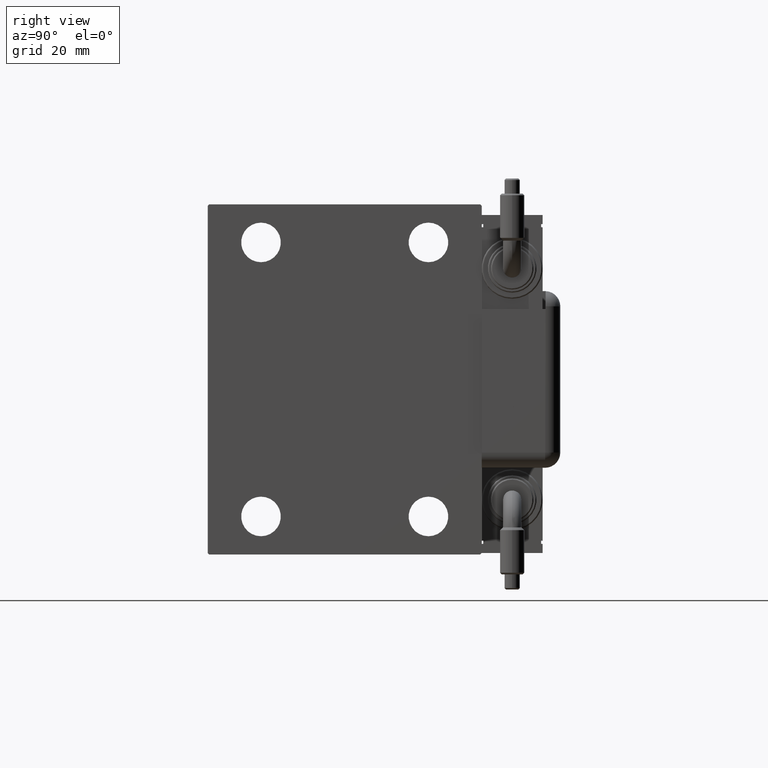
[diagram: clean part render]
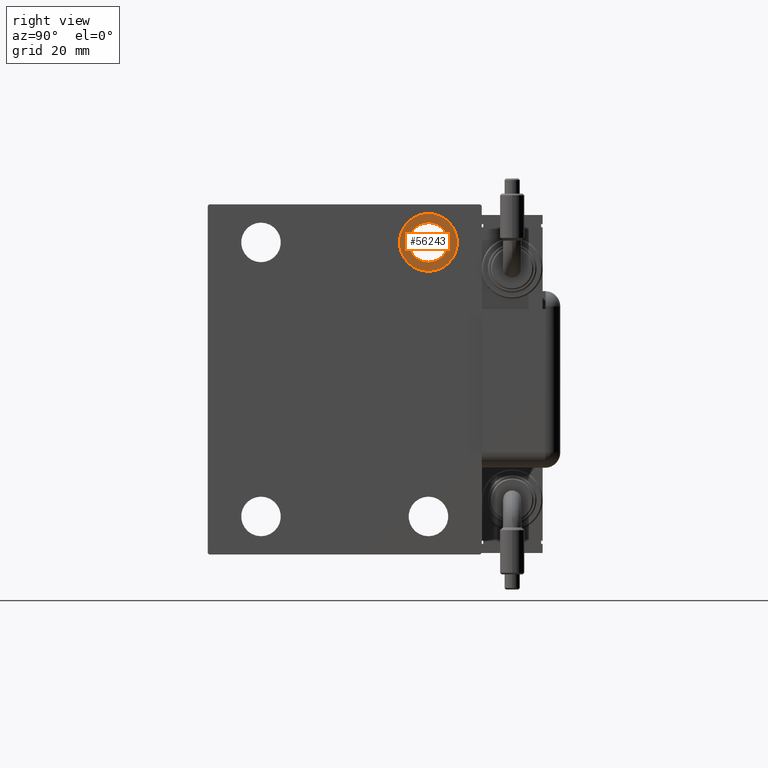
[diagram: same view with one face highlighted and labeled with its STEP entity id]
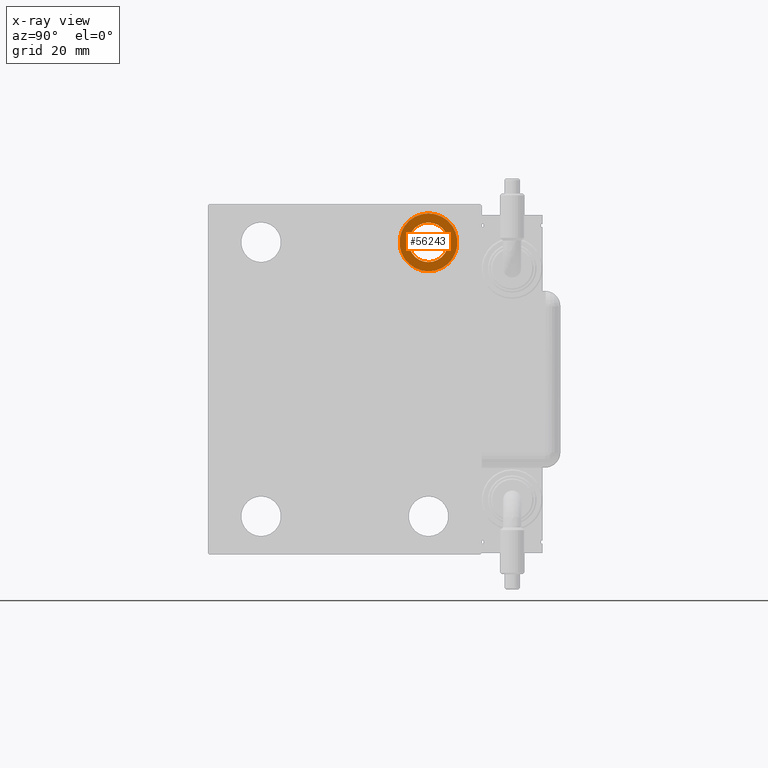
[diagram: x-ray of the same camera — body ghosted, the highlighted face saturated]
A machine part, right view. The second image highlights one B-rep face of the part: STEP entity #56243.
The next image is the same camera in x-ray: the body ghosted, the highlighted face saturated — about 0% of this face is hidden behind the body in this view.
In plain terms, the highlighted planar face has unit normal (1, 0, 0).
Its self-contained STEP definition (entity closure, byte-faithful):
#640 = EDGE_CURVE ( 'NONE', #28295, #21795, #48796, .T. ) ;
#3288 = DIRECTION ( 'NONE',  ( 1.000000000000000000, 0.000000000000000000, -0.000000000000000000 ) ) ;
#4180 = PLANE ( 'NONE',  #30304 ) ;
#4780 = DIRECTION ( 'NONE',  ( -1.000000000000000000, -0.000000000000000000, -0.000000000000000000 ) ) ;
#7655 = CIRCLE ( 'NONE', #14623, 9.500000000000001776 ) ;
#8250 = DIRECTION ( 'NONE',  ( 0.000000000000000000, 0.000000000000000000, 1.000000000000000000 ) ) ;
#9131 = CARTESIAN_POINT ( 'NONE',  ( 95.00000000000000000, 27.50000000000001066, 45.00000000000000711 ) ) ;
#9132 = AXIS2_PLACEMENT_3D ( 'NONE', #9384, #60603, #27066 ) ;
#9250 = AXIS2_PLACEMENT_3D ( 'NONE', #32415, #31507, #50767 ) ;
#9384 = CARTESIAN_POINT ( 'NONE',  ( 95.00000000000000000, 27.50000000000001066, 45.00000000000000711 ) ) ;
#10292 = ORIENTED_EDGE ( 'NONE', *, *, #48960, .T. ) ;
#11917 = EDGE_LOOP ( 'NONE', ( #10292, #55031 ) ) ;
#14623 = AXIS2_PLACEMENT_3D ( 'NONE', #27168, #35856, #8250 ) ;
#16084 = CARTESIAN_POINT ( 'NONE',  ( 95.00000000000000000, 27.50000000000001066, 51.50000000000000711 ) ) ;
#16530 = CARTESIAN_POINT ( 'NONE',  ( 95.00000000000000000, 27.50000000000001066, 35.50000000000000711 ) ) ;
#20386 = VERTEX_POINT ( 'NONE', #32441 ) ;
#20450 = CIRCLE ( 'NONE', #35276, 6.499999999999999112 ) ;
#21795 = VERTEX_POINT ( 'NONE', #28343 ) ;
#27066 = DIRECTION ( 'NONE',  ( 0.000000000000000000, 0.000000000000000000, 1.000000000000000000 ) ) ;
#27146 = FACE_BOUND ( 'NONE', #11917, .T. ) ;
#27168 = CARTESIAN_POINT ( 'NONE',  ( 95.00000000000000000, 27.50000000000001066, 45.00000000000000711 ) ) ;
#28040 = DIRECTION ( 'NONE',  ( 0.000000000000000000, 0.000000000000000000, -1.000000000000000000 ) ) ;
#28295 = VERTEX_POINT ( 'NONE', #16530 ) ;
#28343 = CARTESIAN_POINT ( 'NONE',  ( 95.00000000000000000, 27.50000000000001066, 54.50000000000000711 ) ) ;
#30304 = AXIS2_PLACEMENT_3D ( 'NONE', #45783, #3288, #60374 ) ;
#30902 = ORIENTED_EDGE ( 'NONE', *, *, #640, .F. ) ;
#31507 = DIRECTION ( 'NONE',  ( -1.000000000000000000, -0.000000000000000000, -0.000000000000000000 ) ) ;
#32211 = ORIENTED_EDGE ( 'NONE', *, *, #58384, .F. ) ;
#32415 = CARTESIAN_POINT ( 'NONE',  ( 95.00000000000000000, 27.50000000000001066, 45.00000000000000711 ) ) ;
#32441 = CARTESIAN_POINT ( 'NONE',  ( 95.00000000000000000, 27.50000000000001066, 38.50000000000000711 ) ) ;
#35276 = AXIS2_PLACEMENT_3D ( 'NONE', #9131, #4780, #28040 ) ;
#35856 = DIRECTION ( 'NONE',  ( -1.000000000000000000, -0.000000000000000000, -0.000000000000000000 ) ) ;
#36036 = CIRCLE ( 'NONE', #9250, 6.499999999999999112 ) ;
#38425 = VERTEX_POINT ( 'NONE', #16084 ) ;
#41709 = FACE_OUTER_BOUND ( 'NONE', #56982, .T. ) ;
#45783 = CARTESIAN_POINT ( 'NONE',  ( 95.00000000000000000, 0.000000000000000000, 0.000000000000000000 ) ) ;
#48796 = CIRCLE ( 'NONE', #9132, 9.500000000000001776 ) ;
#48960 = EDGE_CURVE ( 'NONE', #38425, #20386, #36036, .T. ) ;
#50767 = DIRECTION ( 'NONE',  ( 0.000000000000000000, 0.000000000000000000, -1.000000000000000000 ) ) ;
#55031 = ORIENTED_EDGE ( 'NONE', *, *, #55626, .T. ) ;
#55626 = EDGE_CURVE ( 'NONE', #20386, #38425, #20450, .T. ) ;
#56243 = ADVANCED_FACE ( 'NONE', ( #41709, #27146 ), #4180, .T. ) ;
#56982 = EDGE_LOOP ( 'NONE', ( #30902, #32211 ) ) ;
#58384 = EDGE_CURVE ( 'NONE', #21795, #28295, #7655, .T. ) ;
#60374 = DIRECTION ( 'NONE',  ( 0.000000000000000000, 0.000000000000000000, 1.000000000000000000 ) ) ;
#60603 = DIRECTION ( 'NONE',  ( -1.000000000000000000, -0.000000000000000000, -0.000000000000000000 ) ) ;